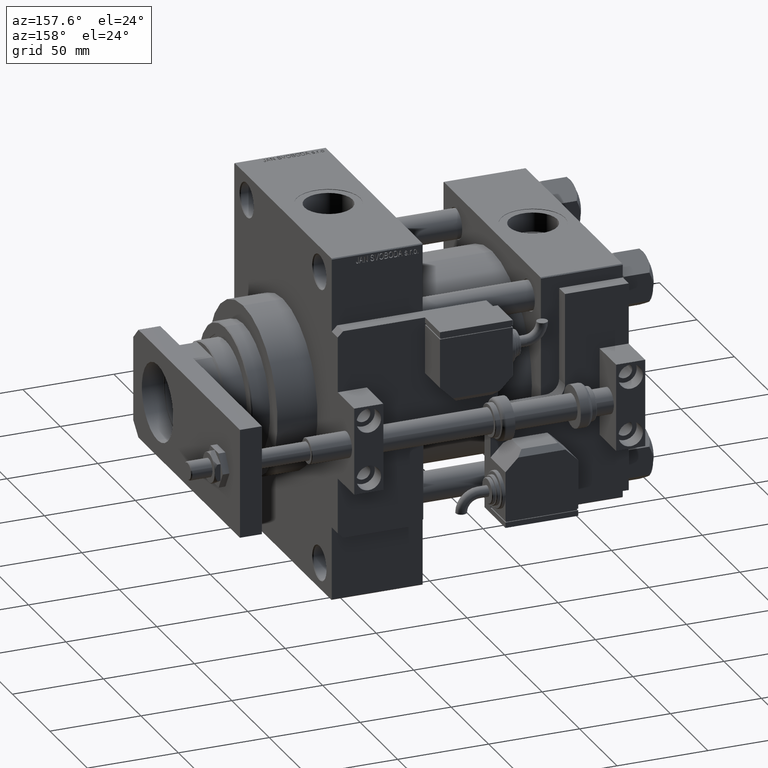
[diagram: clean part render]
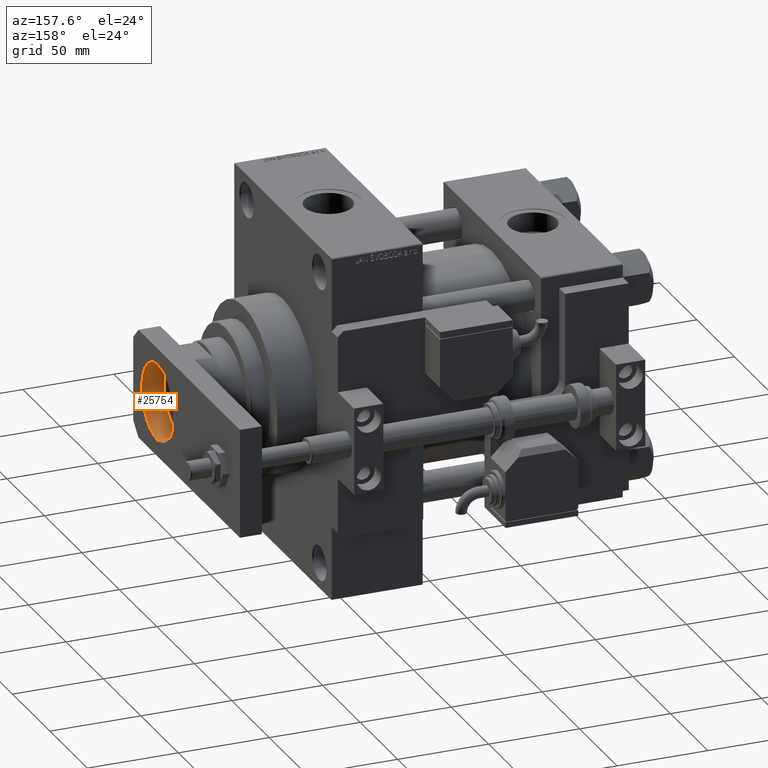
[diagram: same view with one face highlighted and labeled with its STEP entity id]
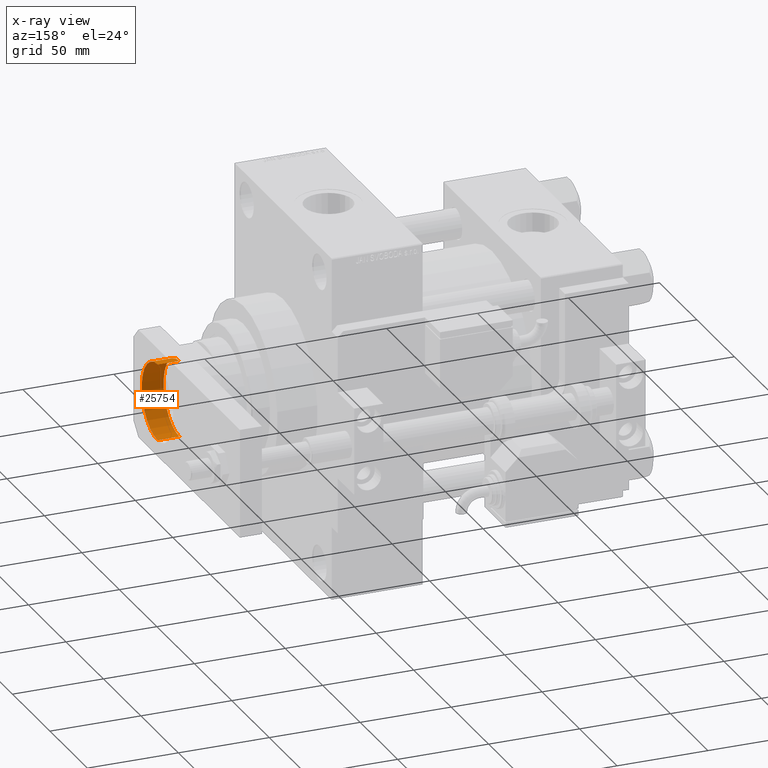
[diagram: x-ray of the same camera — body ghosted, the highlighted face saturated]
A machine part, auxiliary view. The second image highlights one B-rep face of the part: STEP entity #25754.
The next image is the same camera in x-ray: the body ghosted, the highlighted face saturated — about 0% of this face is hidden behind the body in this view.
In plain terms, the highlighted cylindrical surface (partial cylindrical patch) has radius 21 mm, axis along (1, -0, -0).
Its self-contained STEP definition (entity closure, byte-faithful):
#806 = CYLINDRICAL_SURFACE ( 'NONE', #17118, 21.00000000000000000 ) ;
#1139 = LINE ( 'NONE', #30063, #52894 ) ;
#4621 = EDGE_CURVE ( 'NONE', #21011, #37520, #29086, .T. ) ;
#4790 = VERTEX_POINT ( 'NONE', #13090 ) ;
#4830 = DIRECTION ( 'NONE',  ( -1.000000000000000000, 0.000000000000000000, 0.000000000000000000 ) ) ;
#5334 = DIRECTION ( 'NONE',  ( 0.000000000000000000, 0.000000000000000000, 1.000000000000000000 ) ) ;
#6788 = CIRCLE ( 'NONE', #52579, 21.00000000000000000 ) ;
#10480 = CARTESIAN_POINT ( 'NONE',  ( 0.000000000000000000, 32.49999999999998579, 12.00000000000000000 ) ) ;
#11262 = ORIENTED_EDGE ( 'NONE', *, *, #4621, .F. ) ;
#12362 = ORIENTED_EDGE ( 'NONE', *, *, #14682, .F. ) ;
#13090 = CARTESIAN_POINT ( 'NONE',  ( 21.00000000000000000, 32.49999999999998579, 0.000000000000000000 ) ) ;
#13188 = DIRECTION ( 'NONE',  ( -0.000000000000000000, -0.000000000000000000, -1.000000000000000000 ) ) ;
#14682 = EDGE_CURVE ( 'NONE', #37520, #4790, #34115, .T. ) ;
#15291 = VERTEX_POINT ( 'NONE', #18659 ) ;
#17118 = AXIS2_PLACEMENT_3D ( 'NONE', #41911, #13188, #4830 ) ;
#18659 = CARTESIAN_POINT ( 'NONE',  ( 21.00000000000000000, 32.49999999999998579, 12.00000000000000000 ) ) ;
#20429 = DIRECTION ( 'NONE',  ( -0.000000000000000000, -0.000000000000000000, -1.000000000000000000 ) ) ;
#21011 = VERTEX_POINT ( 'NONE', #46928 ) ;
#21873 = FACE_OUTER_BOUND ( 'NONE', #42987, .T. ) ;
#22415 = DIRECTION ( 'NONE',  ( 1.000000000000000000, 0.000000000000000000, 0.000000000000000000 ) ) ;
#23271 = DIRECTION ( 'NONE',  ( -0.000000000000000000, -0.000000000000000000, -1.000000000000000000 ) ) ;
#23313 = EDGE_CURVE ( 'NONE', #21011, #15291, #6788, .T. ) ;
#25754 = ADVANCED_FACE ( 'NONE', ( #21873 ), #806, .F. ) ;
#26170 = DIRECTION ( 'NONE',  ( 1.000000000000000000, 0.000000000000000000, 0.000000000000000000 ) ) ;
#29086 = LINE ( 'NONE', #32893, #34457 ) ;
#30063 = CARTESIAN_POINT ( 'NONE',  ( 21.00000000000000000, 32.49999999999998579, 12.00000000000000000 ) ) ;
#30506 = CARTESIAN_POINT ( 'NONE',  ( 0.000000000000000000, 32.49999999999998579, 0.000000000000000000 ) ) ;
#32893 = CARTESIAN_POINT ( 'NONE',  ( -21.00000000000000000, 32.49999999999998579, 12.00000000000000000 ) ) ;
#33466 = ORIENTED_EDGE ( 'NONE', *, *, #37208, .T. ) ;
#34115 = CIRCLE ( 'NONE', #53088, 21.00000000000000000 ) ;
#34457 = VECTOR ( 'NONE', #20429, 1000.000000000000000 ) ;
#36925 = ORIENTED_EDGE ( 'NONE', *, *, #23313, .T. ) ;
#37208 = EDGE_CURVE ( 'NONE', #15291, #4790, #1139, .T. ) ;
#37520 = VERTEX_POINT ( 'NONE', #39673 ) ;
#39673 = CARTESIAN_POINT ( 'NONE',  ( -21.00000000000000000, 32.49999999999998579, 0.000000000000000000 ) ) ;
#41911 = CARTESIAN_POINT ( 'NONE',  ( 0.000000000000000000, 32.49999999999998579, 12.00000000000000000 ) ) ;
#42987 = EDGE_LOOP ( 'NONE', ( #36925, #33466, #12362, #11262 ) ) ;
#44297 = DIRECTION ( 'NONE',  ( 0.000000000000000000, 0.000000000000000000, 1.000000000000000000 ) ) ;
#46928 = CARTESIAN_POINT ( 'NONE',  ( -21.00000000000000000, 32.49999999999998579, 12.00000000000000000 ) ) ;
#52579 = AXIS2_PLACEMENT_3D ( 'NONE', #10480, #44297, #22415 ) ;
#52894 = VECTOR ( 'NONE', #23271, 1000.000000000000000 ) ;
#53088 = AXIS2_PLACEMENT_3D ( 'NONE', #30506, #5334, #26170 ) ;